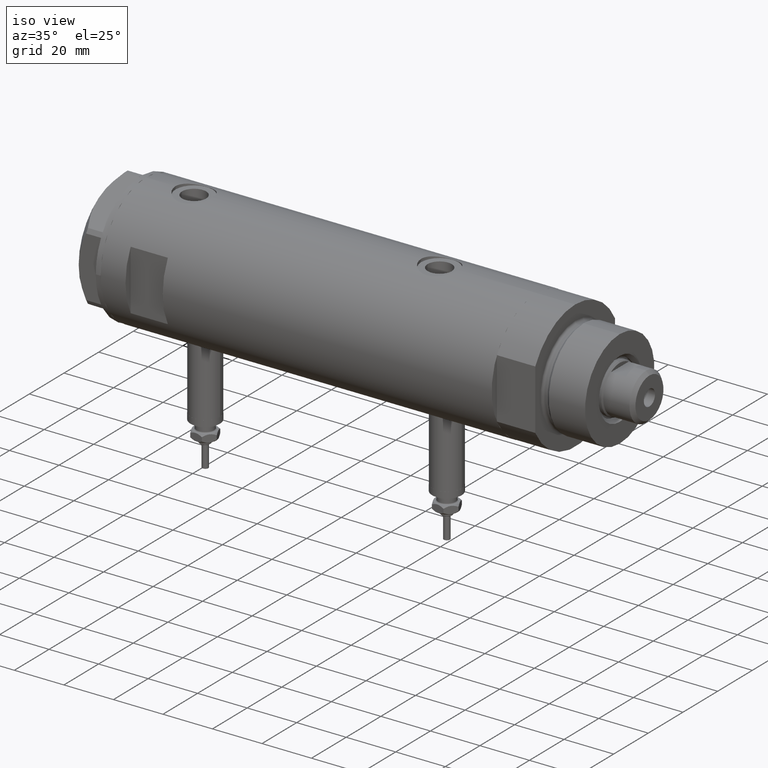
[diagram: clean part render]
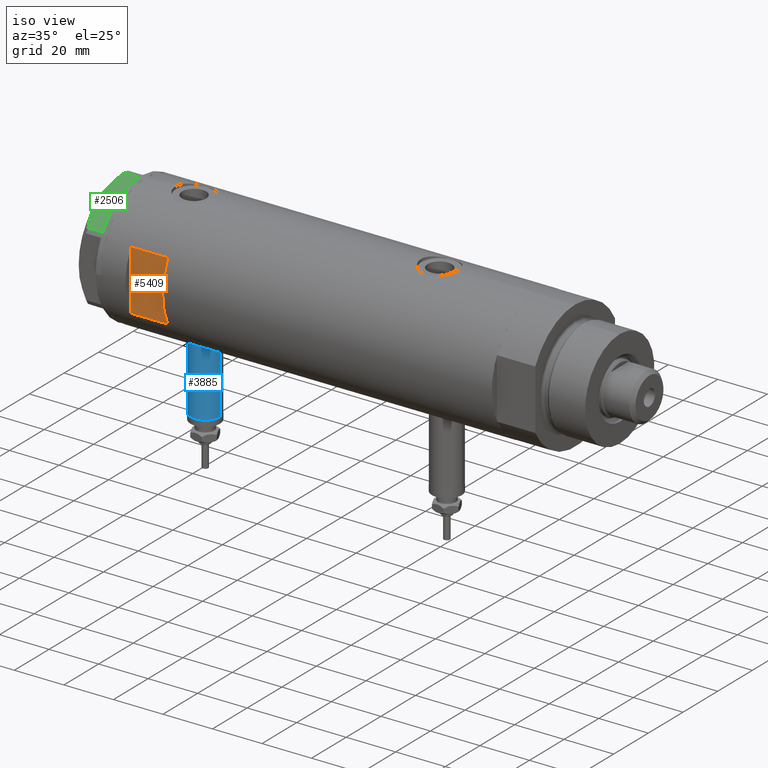
[diagram: same view with three faces highlighted in distinct colors, each labeled with its STEP entity id]
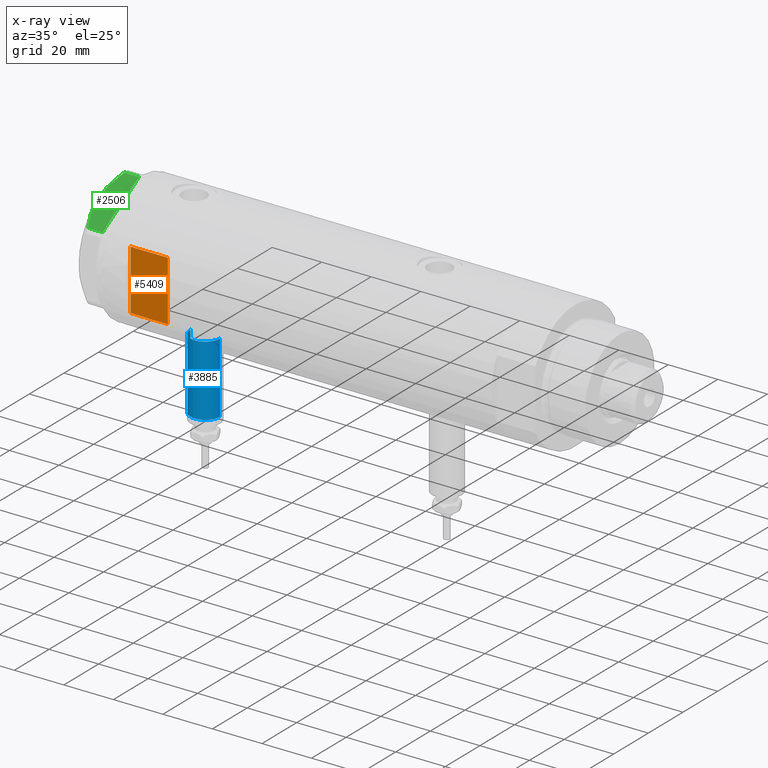
[diagram: x-ray of the same camera — body ghosted, the three highlighted faces saturated]
A machine part, iso view with three faces highlighted in distinct colors.
The next image is the same camera in x-ray (body ghosted, the three faces saturated) — at least one of them is partly hidden behind the body in this view.
Their STEP definitions:

[orange] entity #5409 — the highlighted planar face has unit normal (-0, 1, 0).
#98 = CARTESIAN_POINT ( 'NONE',  ( -26.00000000000000355, -23.00000000000000355, 68.95000000000003126 ) ) ;
#304 = AXIS2_PLACEMENT_3D ( 'NONE', #98, #3517, #1499 ) ;
#468 = VERTEX_POINT ( 'NONE', #2530 ) ;
#596 = ORIENTED_EDGE ( 'NONE', *, *, #2393, .T. ) ;
#896 = LINE ( 'NONE', #4292, #2140 ) ;
#1069 = DIRECTION ( 'NONE',  ( 1.000000000000000000, -0.000000000000000000, -0.000000000000000000 ) ) ;
#1108 = EDGE_CURVE ( 'NONE', #2415, #468, #5386, .T. ) ;
#1499 = DIRECTION ( 'NONE',  ( 0.000000000000000000, -0.000000000000000000, 1.000000000000000000 ) ) ;
#1523 = VECTOR ( 'NONE', #2248, 1000.000000000000000 ) ;
#2140 = VECTOR ( 'NONE', #3878, 1000.000000000000000 ) ;
#2212 = VECTOR ( 'NONE', #1069, 1000.000000000000000 ) ;
#2248 = DIRECTION ( 'NONE',  ( 0.000000000000000000, 0.000000000000000000, 1.000000000000000000 ) ) ;
#2251 = DIRECTION ( 'NONE',  ( -0.000000000000000000, -0.000000000000000000, -1.000000000000000000 ) ) ;
#2393 = EDGE_CURVE ( 'NONE', #468, #2409, #3233, .T. ) ;
#2409 = VERTEX_POINT ( 'NONE', #4714 ) ;
#2415 = VERTEX_POINT ( 'NONE', #6258 ) ;
#2530 = CARTESIAN_POINT ( 'NONE',  ( 12.12435565298214080, -23.00000000000000355, 53.95000000000001705 ) ) ;
#3149 = VECTOR ( 'NONE', #2251, 1000.000000000000000 ) ;
#3233 = LINE ( 'NONE', #4304, #1523 ) ;
#3517 = DIRECTION ( 'NONE',  ( 0.000000000000000000, 1.000000000000000000, 0.000000000000000000 ) ) ;
#3582 = EDGE_LOOP ( 'NONE', ( #3924, #4028, #596, #4918 ) ) ;
#3790 = LINE ( 'NONE', #6260, #3149 ) ;
#3878 = DIRECTION ( 'NONE',  ( 1.000000000000000000, -0.000000000000000000, -0.000000000000000000 ) ) ;
#3924 = ORIENTED_EDGE ( 'NONE', *, *, #4140, .T. ) ;
#4028 = ORIENTED_EDGE ( 'NONE', *, *, #1108, .T. ) ;
#4140 = EDGE_CURVE ( 'NONE', #5490, #2415, #3790, .T. ) ;
#4292 = CARTESIAN_POINT ( 'NONE',  ( -26.00000000000000355, -23.00000000000000355, 68.95000000000003126 ) ) ;
#4304 = CARTESIAN_POINT ( 'NONE',  ( 12.12435565298214080, -23.00000000000000355, -78.95000000000000284 ) ) ;
#4686 = EDGE_CURVE ( 'NONE', #5490, #2409, #896, .T. ) ;
#4714 = CARTESIAN_POINT ( 'NONE',  ( 12.12435565298214080, -23.00000000000000355, 68.95000000000003126 ) ) ;
#4918 = ORIENTED_EDGE ( 'NONE', *, *, #4686, .F. ) ;
#4931 = PLANE ( 'NONE',  #304 ) ;
#5007 = CARTESIAN_POINT ( 'NONE',  ( -26.00000000000000355, -23.00000000000000355, 53.95000000000002416 ) ) ;
#5386 = LINE ( 'NONE', #5007, #2212 ) ;
#5409 = ADVANCED_FACE ( 'NONE', ( #5920 ), #4931, .F. ) ;
#5441 = CARTESIAN_POINT ( 'NONE',  ( -12.12435565298214080, -23.00000000000000355, 68.95000000000003126 ) ) ;
#5490 = VERTEX_POINT ( 'NONE', #5441 ) ;
#5920 = FACE_OUTER_BOUND ( 'NONE', #3582, .T. ) ;
#6258 = CARTESIAN_POINT ( 'NONE',  ( -12.12435565298214080, -23.00000000000000355, 53.95000000000001705 ) ) ;
#6260 = CARTESIAN_POINT ( 'NONE',  ( -12.12435565298214080, -23.00000000000000355, -78.95000000000000284 ) ) ;

[blue] entity #3885 — the highlighted cylindrical surface (edge-blend (fillet) strip) has radius 6 mm, axis along (0, 0, 1).
#67 = DIRECTION ( 'NONE',  ( 1.000000000000000000, -0.000000000000000000, -0.000000000000000000 ) ) ;
#135 = EDGE_CURVE ( 'NONE', #5543, #4042, #3737, .T. ) ;
#349 = CARTESIAN_POINT ( 'NONE',  ( -24.80000000000000426, 0.000000000000000000, 54.95000000000000284 ) ) ;
#399 = EDGE_CURVE ( 'NONE', #5452, #1463, #1907, .T. ) ;
#441 = EDGE_CURVE ( 'NONE', #5452, #5543, #2621, .T. ) ;
#699 = LINE ( 'NONE', #6053, #1639 ) ;
#1076 = ORIENTED_EDGE ( 'NONE', *, *, #5122, .F. ) ;
#1175 = DIRECTION ( 'NONE',  ( -1.000000000000000000, 0.000000000000000000, 0.000000000000000000 ) ) ;
#1463 = VERTEX_POINT ( 'NONE', #6047 ) ;
#1467 = CARTESIAN_POINT ( 'NONE',  ( -53.40000000000000568, 0.000000000000000000, 54.95000000000000284 ) ) ;
#1639 = VECTOR ( 'NONE', #2599, 1000.000000000000000 ) ;
#1720 = DIRECTION ( 'NONE',  ( 0.000000000000000000, 0.000000000000000000, 1.000000000000000000 ) ) ;
#1782 = ORIENTED_EDGE ( 'NONE', *, *, #441, .T. ) ;
#1907 = CIRCLE ( 'NONE', #4369, 5.999999999999998224 ) ;
#1948 = CARTESIAN_POINT ( 'NONE',  ( -53.40000000000000568, 0.000000000000000000, 48.95000000000000995 ) ) ;
#2137 = AXIS2_PLACEMENT_3D ( 'NONE', #1467, #5399, #5368 ) ;
#2599 = DIRECTION ( 'NONE',  ( 1.000000000000000000, -0.000000000000000000, -0.000000000000000000 ) ) ;
#2621 = LINE ( 'NONE', #3102, #3043 ) ;
#2641 = CARTESIAN_POINT ( 'NONE',  ( -24.80000000000000426, 7.347880794884108889E-16, 60.95000000000000284 ) ) ;
#2679 = ORIENTED_EDGE ( 'NONE', *, *, #135, .T. ) ;
#3016 = DIRECTION ( 'NONE',  ( 0.000000000000000000, 0.000000000000000000, 1.000000000000000000 ) ) ;
#3043 = VECTOR ( 'NONE', #67, 1000.000000000000000 ) ;
#3044 = CARTESIAN_POINT ( 'NONE',  ( -53.40000000000000568, 0.000000000000000000, 54.95000000000000284 ) ) ;
#3102 = CARTESIAN_POINT ( 'NONE',  ( -53.40000000000000568, 0.000000000000000000, 48.95000000000000995 ) ) ;
#3334 = AXIS2_PLACEMENT_3D ( 'NONE', #349, #5143, #1720 ) ;
#3446 = FACE_OUTER_BOUND ( 'NONE', #3825, .T. ) ;
#3510 = CYLINDRICAL_SURFACE ( 'NONE', #2137, 5.999999999999998224 ) ;
#3737 = CIRCLE ( 'NONE', #3334, 5.999999999999998224 ) ;
#3825 = EDGE_LOOP ( 'NONE', ( #1076, #4675, #1782, #2679 ) ) ;
#3885 = ADVANCED_FACE ( 'NONE', ( #3446 ), #3510, .T. ) ;
#4042 = VERTEX_POINT ( 'NONE', #2641 ) ;
#4226 = CARTESIAN_POINT ( 'NONE',  ( -24.80000000000000426, 0.000000000000000000, 48.95000000000000995 ) ) ;
#4369 = AXIS2_PLACEMENT_3D ( 'NONE', #3044, #1175, #3016 ) ;
#4675 = ORIENTED_EDGE ( 'NONE', *, *, #399, .F. ) ;
#5122 = EDGE_CURVE ( 'NONE', #1463, #4042, #699, .T. ) ;
#5143 = DIRECTION ( 'NONE',  ( -1.000000000000000000, 0.000000000000000000, 0.000000000000000000 ) ) ;
#5368 = DIRECTION ( 'NONE',  ( 0.000000000000000000, 0.000000000000000000, -1.000000000000000000 ) ) ;
#5399 = DIRECTION ( 'NONE',  ( 1.000000000000000000, -0.000000000000000000, -0.000000000000000000 ) ) ;
#5452 = VERTEX_POINT ( 'NONE', #1948 ) ;
#5543 = VERTEX_POINT ( 'NONE', #4226 ) ;
#6047 = CARTESIAN_POINT ( 'NONE',  ( -53.40000000000000568, 7.347880794884108889E-16, 60.95000000000000284 ) ) ;
#6053 = CARTESIAN_POINT ( 'NONE',  ( -53.40000000000000568, 7.347880794884112834E-16, 60.95000000000000284 ) ) ;

[green] entity #2506 — the highlighted planar face has unit normal (-0, 0.5, -0.866).
#14 = CARTESIAN_POINT ( 'NONE',  ( -22.03005154776132102, -13.83905619136147536, 0.000000000000000000 ) ) ;
#30 = CARTESIAN_POINT ( 'NONE',  ( -1.799196345398571983, -25.51934588838179607, 6.431317509510369845 ) ) ;
#88 = CARTESIAN_POINT ( 'NONE',  ( -0.9699484522383977625, -25.99811238272274494, 9.000000000000000000 ) ) ;
#236 = LINE ( 'NONE', #2179, #2544 ) ;
#356 = DIRECTION ( 'NONE',  ( 0.8660254037844415942, -0.4999999999999950595, 0.000000000000000000 ) ) ;
#440 = ORIENTED_EDGE ( 'NONE', *, *, #3623, .T. ) ;
#469 = CARTESIAN_POINT ( 'NONE',  ( -3.925137811031424562, -24.29193301091729396, 7.397272853992039821 ) ) ;
#481 = EDGE_CURVE ( 'NONE', #6109, #5021, #5884, .T. ) ;
#644 = CARTESIAN_POINT ( 'NONE',  ( -22.03005154776146313, -13.83905619136139364, 5.983800287807550689 ) ) ;
#946 = CARTESIAN_POINT ( 'NONE',  ( -22.99999999999990408, -13.27905619136147841, 9.000000000000000000 ) ) ;
#1391 = CARTESIAN_POINT ( 'NONE',  ( -11.49999999999990585, -19.91858428704219364, 9.000000000000000000 ) ) ;
#1527 = VECTOR ( 'NONE', #2275, 1000.000000000000000 ) ;
#1539 = CARTESIAN_POINT ( 'NONE',  ( -12.41906678023023325, -19.38796083407287085, 8.981686407609506873 ) ) ;
#1551 = CARTESIAN_POINT ( 'NONE',  ( -0.9699484522404678843, -25.99811238272155123, 5.983800287808756835 ) ) ;
#1662 = CARTESIAN_POINT ( 'NONE',  ( -18.67981377008999644, -15.77331687414923778, 7.629374868826104716 ) ) ;
#1760 = EDGE_CURVE ( 'NONE', #5021, #5851, #2289, .T. ) ;
#1787 = CARTESIAN_POINT ( 'NONE',  ( -0.9699484522383943208, -25.99811238272274494, 0.000000000000000000 ) ) ;
#2089 = EDGE_CURVE ( 'NONE', #4527, #5851, #4470, .T. ) ;
#2146 = VECTOR ( 'NONE', #5626, 1000.000000000000000 ) ;
#2179 = CARTESIAN_POINT ( 'NONE',  ( -22.99999999999990408, -13.27905619136147841, 0.000000000000000000 ) ) ;
#2275 = DIRECTION ( 'NONE',  ( 0.8660254037844415942, -0.4999999999999950595, 0.000000000000000000 ) ) ;
#2289 = B_SPLINE_CURVE_WITH_KNOTS ( 'NONE', 3,
 ( #1391, #4856, #4825, #3342, #4411, #5300, #469, #2419, #30, #4372 ),
 .UNSPECIFIED., .F., .F.,
 ( 4, 2, 2, 2, 4 ),
 ( 0.01376519981810312397, 0.01998941321701459134, 0.02154546656674245428, 0.02310151991647032069, 0.02621362661592604310 ),
 .UNSPECIFIED. ) ;
#2419 = CARTESIAN_POINT ( 'NONE',  ( -2.640413878808339110, -25.03366871902064261, 6.844201024439214187 ) ) ;
#2492 = DIRECTION ( 'NONE',  ( 0.000000000000000000, 0.000000000000000000, 1.000000000000000000 ) ) ;
#2506 = ADVANCED_FACE ( 'NONE', ( #2963 ), #6288, .F. ) ;
#2544 = VECTOR ( 'NONE', #5603, 1000.000000000000000 ) ;
#2652 = CARTESIAN_POINT ( 'NONE',  ( -16.05322244309625290, -17.28978008384019915, 8.426899937603781865 ) ) ;
#2729 = ORIENTED_EDGE ( 'NONE', *, *, #2089, .T. ) ;
#2963 = FACE_OUTER_BOUND ( 'NONE', #4882, .T. ) ;
#3063 = AXIS2_PLACEMENT_3D ( 'NONE', #946, #5904, #4817 ) ;
#3087 = ORIENTED_EDGE ( 'NONE', *, *, #4541, .T. ) ;
#3342 = CARTESIAN_POINT ( 'NONE',  ( -5.671686373603866294, -23.28356272816335348, 8.040681765829727823 ) ) ;
#3490 = CARTESIAN_POINT ( 'NONE',  ( -15.16323225988328538, -17.80361615569431777, 8.637313967156948991 ) ) ;
#3610 = CARTESIAN_POINT ( 'NONE',  ( -11.95865151389046588, -19.65378171203314395, 9.000000000000095923 ) ) ;
#3623 = EDGE_CURVE ( 'NONE', #3975, #4527, #236, .T. ) ;
#3703 = CARTESIAN_POINT ( 'NONE',  ( -11.49999999999990585, -19.91858428704219364, 9.000000000000000000 ) ) ;
#3740 = CARTESIAN_POINT ( 'NONE',  ( -22.99999999999990408, -13.27905619136147841, 0.000000000000000000 ) ) ;
#3915 = CARTESIAN_POINT ( 'NONE',  ( -22.03005154776132102, -13.83905619136147536, 9.000000000000000000 ) ) ;
#3975 = VERTEX_POINT ( 'NONE', #4589 ) ;
#4159 = VECTOR ( 'NONE', #2492, 1000.000000000000000 ) ;
#4172 = VECTOR ( 'NONE', #356, 1000.000000000000000 ) ;
#4253 = LINE ( 'NONE', #3740, #1527 ) ;
#4372 = CARTESIAN_POINT ( 'NONE',  ( -0.9699484522404678843, -25.99811238272155123, 5.983800287808756835 ) ) ;
#4411 = CARTESIAN_POINT ( 'NONE',  ( -5.229981517799206614, -23.53858114556453529, 7.892128867758890998 ) ) ;
#4470 = LINE ( 'NONE', #88, #4159 ) ;
#4482 = CARTESIAN_POINT ( 'NONE',  ( -13.34348161667001698, -18.85424967941148822, 8.907842277728438063 ) ) ;
#4519 = EDGE_CURVE ( 'NONE', #4922, #6092, #4707, .T. ) ;
#4527 = VERTEX_POINT ( 'NONE', #1787 ) ;
#4541 = EDGE_CURVE ( 'NONE', #6092, #3975, #4253, .T. ) ;
#4589 = CARTESIAN_POINT ( 'NONE',  ( -0.9999999999997406519, -25.98076211353317433, 0.000000000000000000 ) ) ;
#4636 = CARTESIAN_POINT ( 'NONE',  ( -22.99999999999990408, -13.27905619136147841, 0.000000000000000000 ) ) ;
#4695 = ORIENTED_EDGE ( 'NONE', *, *, #1760, .F. ) ;
#4707 = LINE ( 'NONE', #4636, #4172 ) ;
#4802 = CARTESIAN_POINT ( 'NONE',  ( -21.99999999999998224, -13.85640646055105485, 0.000000000000000000 ) ) ;
#4817 = DIRECTION ( 'NONE',  ( -0.8660254037844414832, 0.4999999999999950040, 0.000000000000000000 ) ) ;
#4825 = CARTESIAN_POINT ( 'NONE',  ( -7.884645426990268824, -22.00591022298511490, 8.707651728477127762 ) ) ;
#4856 = CARTESIAN_POINT ( 'NONE',  ( -9.678244919010385416, -20.97037507344893115, 9.000000000000088818 ) ) ;
#4882 = EDGE_LOOP ( 'NONE', ( #5227, #5354, #5248, #3087, #440, #2729, #4695 ) ) ;
#4922 = VERTEX_POINT ( 'NONE', #14 ) ;
#5020 = EDGE_CURVE ( 'NONE', #6109, #4922, #5033, .T. ) ;
#5021 = VERTEX_POINT ( 'NONE', #3703 ) ;
#5033 = LINE ( 'NONE', #3915, #2146 ) ;
#5077 = CARTESIAN_POINT ( 'NONE',  ( -20.37350567916426058, -14.79546339452094017, 6.877782426143456362 ) ) ;
#5227 = ORIENTED_EDGE ( 'NONE', *, *, #481, .F. ) ;
#5248 = ORIENTED_EDGE ( 'NONE', *, *, #4519, .T. ) ;
#5300 = CARTESIAN_POINT ( 'NONE',  ( -4.357207709417335373, -24.04247733877546267, 7.570552255230290406 ) ) ;
#5354 = ORIENTED_EDGE ( 'NONE', *, *, #5020, .T. ) ;
#5500 = CARTESIAN_POINT ( 'NONE',  ( -13.80210138309694301, -18.58946543380922378, 8.852712638955804181 ) ) ;
#5535 = CARTESIAN_POINT ( 'NONE',  ( -22.03005154776146313, -13.83905619136139364, 5.983800287807550689 ) ) ;
#5562 = CARTESIAN_POINT ( 'NONE',  ( -11.49999999999990585, -19.91858428704219364, 9.000000000000000000 ) ) ;
#5603 = DIRECTION ( 'NONE',  ( 0.8660254037844415942, -0.4999999999999950595, 0.000000000000000000 ) ) ;
#5626 = DIRECTION ( 'NONE',  ( -0.000000000000000000, 0.000000000000000000, -1.000000000000000000 ) ) ;
#5851 = VERTEX_POINT ( 'NONE', #1551 ) ;
#5884 = B_SPLINE_CURVE_WITH_KNOTS ( 'NONE', 3,
 ( #644, #5077, #1662, #2652, #3490, #5500, #4482, #1539, #3610, #5562 ),
 .UNSPECIFIED., .F., .F.,
 ( 4, 2, 2, 2, 4 ),
 ( 0.001228959670438514989, 0.007497079744270818830, 0.01063113978118697227, 0.01219816979964504812, 0.01376519981810312397 ),
 .UNSPECIFIED. ) ;
#5904 = DIRECTION ( 'NONE',  ( 0.4999999999999950595, 0.8660254037844415942, -0.000000000000000000 ) ) ;
#6092 = VERTEX_POINT ( 'NONE', #4802 ) ;
#6109 = VERTEX_POINT ( 'NONE', #5535 ) ;
#6288 = PLANE ( 'NONE',  #3063 ) ;